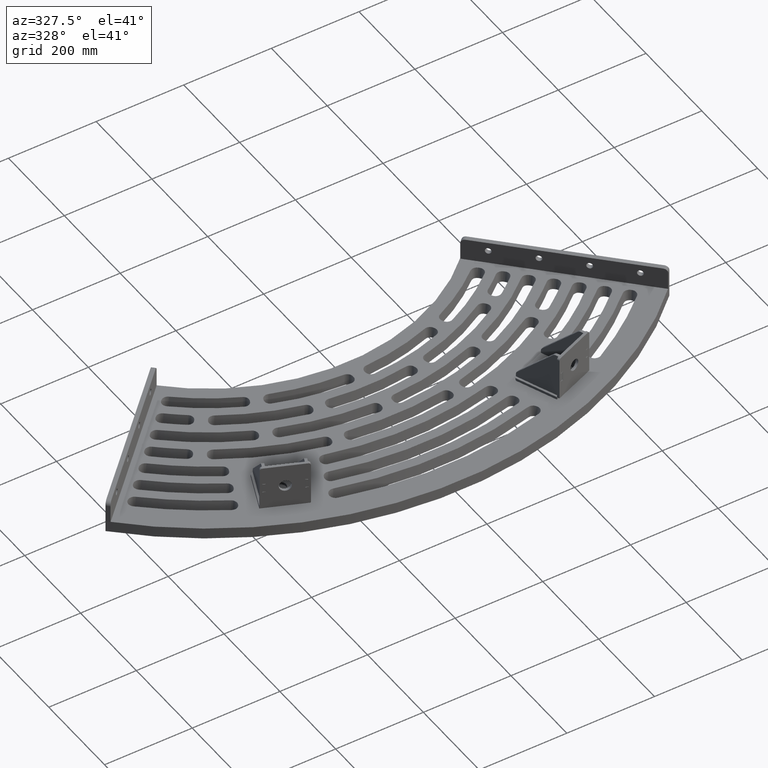
[diagram: clean part render]
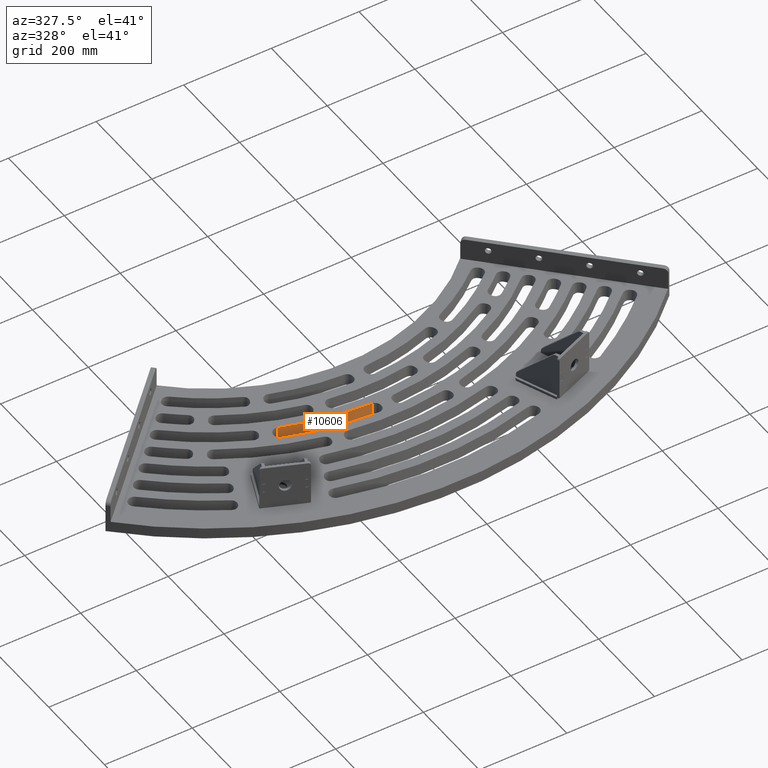
[diagram: same view with one face highlighted and labeled with its STEP entity id]
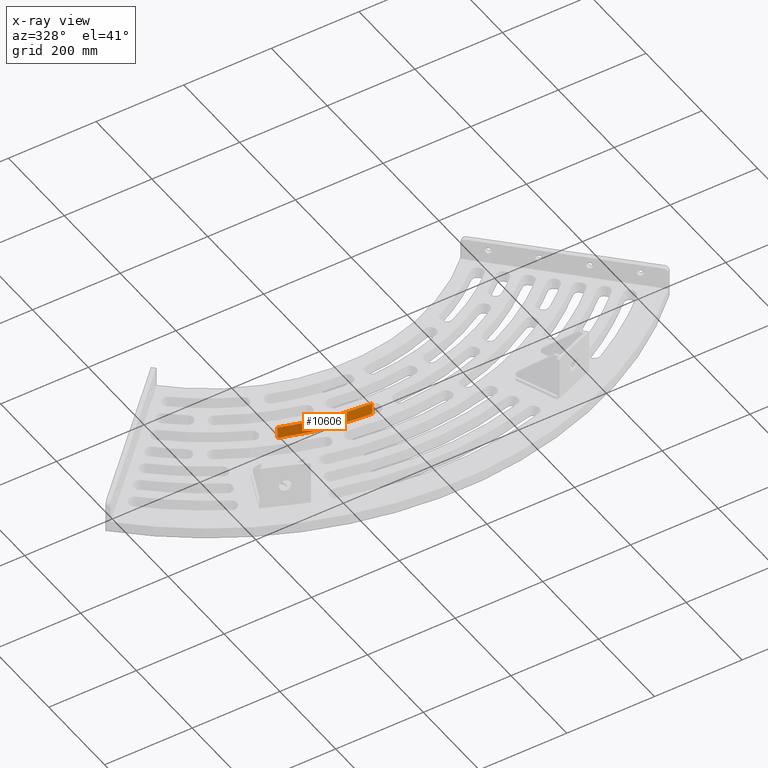
[diagram: x-ray of the same camera — body ghosted, the highlighted face saturated]
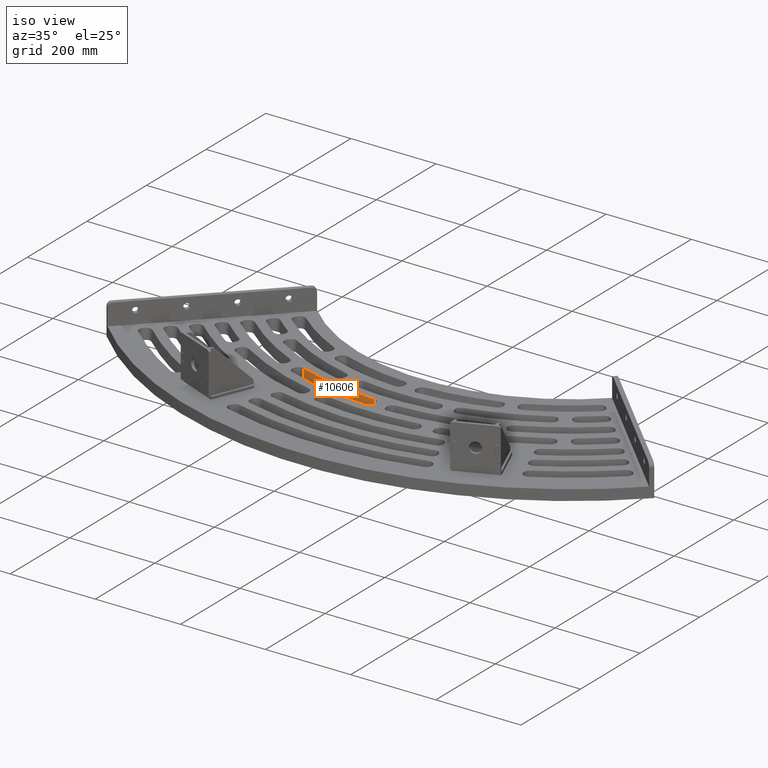
[diagram: same view with one face highlighted and labeled with its STEP entity id]
A machine part, auxiliary view. The second image highlights one B-rep face of the part: STEP entity #10606.
The next image is the same camera in x-ray: the body ghosted, the highlighted face saturated — about 0% of this face is hidden behind the body in this view.
A second angle (iso view) of the same face is appended — the face is thin or edge-on in the first view.
In plain terms, the highlighted conical surface has half-angle 4 deg.
Its self-contained STEP definition (entity closure, byte-faithful):
#429 = CARTESIAN_POINT ( 'NONE',  ( 25.48291352923090969, -627.7348027959210413, -24.99999999999987566 ) ) ;
#448 = VECTOR ( 'NONE', #10645, 1000.000000000000114 ) ;
#915 = DIRECTION ( 'NONE',  ( 1.000000000000000000, -6.192194466414940491E-16, -2.185460951963199771E-18 ) ) ;
#1230 = CARTESIAN_POINT ( 'NONE',  ( 5.463652379908002509E-17, 4.878909776184770742E-15, -25.00000000000000000 ) ) ;
#1478 = EDGE_CURVE ( 'NONE', #6277, #7552, #7236, .T. ) ;
#1608 = DIRECTION ( 'NONE',  ( 2.185460951963199771E-18, 1.951563910473907981E-16, -1.000000000000000000 ) ) ;
#1818 = ORIENTED_EDGE ( 'NONE', *, *, #7533, .F. ) ;
#2284 = DIRECTION ( 'NONE',  ( 1.000000000000000000, -6.192194466414940491E-16, 0.000000000000000000 ) ) ;
#2475 = AXIS2_PLACEMENT_3D ( 'NONE', #11185, #1608, #11244 ) ;
#2988 = VECTOR ( 'NONE', #5477, 1000.000000000000114 ) ;
#4074 = LINE ( 'NONE', #11754, #448 ) ;
#4125 = VERTEX_POINT ( 'NONE', #429 ) ;
#4423 = LINE ( 'NONE', #4487, #2988 ) ;
#4487 = CARTESIAN_POINT ( 'NONE',  ( 25.55382215288657477, -629.4815344181103001, 1.249000902703301108E-13 ) ) ;
#4508 = CIRCLE ( 'NONE', #9464, 628.2518297014120208 ) ;
#5103 = ORIENTED_EDGE ( 'NONE', *, *, #11422, .F. ) ;
#5313 = CARTESIAN_POINT ( 'NONE',  ( 25.55382215288649661, -629.4815344181103001, 1.249000902703301108E-13 ) ) ;
#5477 = DIRECTION ( 'NONE',  ( 0.002829435752491881242, -0.06969906686991880762, 0.9975640502598241977 ) ) ;
#6277 = VERTEX_POINT ( 'NONE', #12206 ) ;
#6507 = DIRECTION ( 'NONE',  ( -2.185460951963199771E-18, -1.951563910473907981E-16, 1.000000000000000000 ) ) ;
#6515 = VERTEX_POINT ( 'NONE', #10720 ) ;
#6919 = AXIS2_PLACEMENT_3D ( 'NONE', #12101, #6507, #915 ) ;
#6938 = DIRECTION ( 'NONE',  ( 2.185460951963199771E-18, 1.951563910473907981E-16, -1.000000000000000000 ) ) ;
#7236 = CIRCLE ( 'NONE', #2475, 629.9999999999998863 ) ;
#7238 = ORIENTED_EDGE ( 'NONE', *, *, #8436, .T. ) ;
#7533 = EDGE_CURVE ( 'NONE', #6515, #4125, #4508, .T. ) ;
#7552 = VERTEX_POINT ( 'NONE', #5313 ) ;
#8436 = EDGE_CURVE ( 'NONE', #6515, #6277, #4074, .T. ) ;
#8509 = FACE_OUTER_BOUND ( 'NONE', #9978, .T. ) ;
#9464 = AXIS2_PLACEMENT_3D ( 'NONE', #1230, #6938, #2284 ) ;
#9978 = EDGE_LOOP ( 'NONE', ( #11533, #5103, #1818, #7238 ) ) ;
#10606 = ADVANCED_FACE ( 'NONE', ( #8509 ), #12075, .T. ) ;
#10645 = DIRECTION ( 'NONE',  ( 0.02405862036214478569, -0.06547631950167238923, 0.9975640502598241977 ) ) ;
#10720 = CARTESIAN_POINT ( 'NONE',  ( 216.6805667105551265, -589.7032249641890758, -24.99999999999988631 ) ) ;
#11185 = CARTESIAN_POINT ( 'NONE',  ( 0.000000000000000000, 0.000000000000000000, 0.000000000000000000 ) ) ;
#11244 = DIRECTION ( 'NONE',  ( 1.000000000000000000, -6.192194466414940491E-16, -2.185460951963199771E-18 ) ) ;
#11422 = EDGE_CURVE ( 'NONE', #4125, #7552, #4423, .T. ) ;
#11533 = ORIENTED_EDGE ( 'NONE', *, *, #1478, .T. ) ;
#11754 = CARTESIAN_POINT ( 'NONE',  ( 217.2835009370812145, -591.3441301142050861, 1.144917494144692682E-13 ) ) ;
#12075 = CONICAL_SURFACE ( 'NONE', #6919, 629.9999999999998863, 0.06981317007977333455 ) ;
#12101 = CARTESIAN_POINT ( 'NONE',  ( 0.000000000000000000, 0.000000000000000000, 0.000000000000000000 ) ) ;
#12206 = CARTESIAN_POINT ( 'NONE',  ( 217.2835009370812145, -591.3441301142050861, 1.144917494144692682E-13 ) ) ;